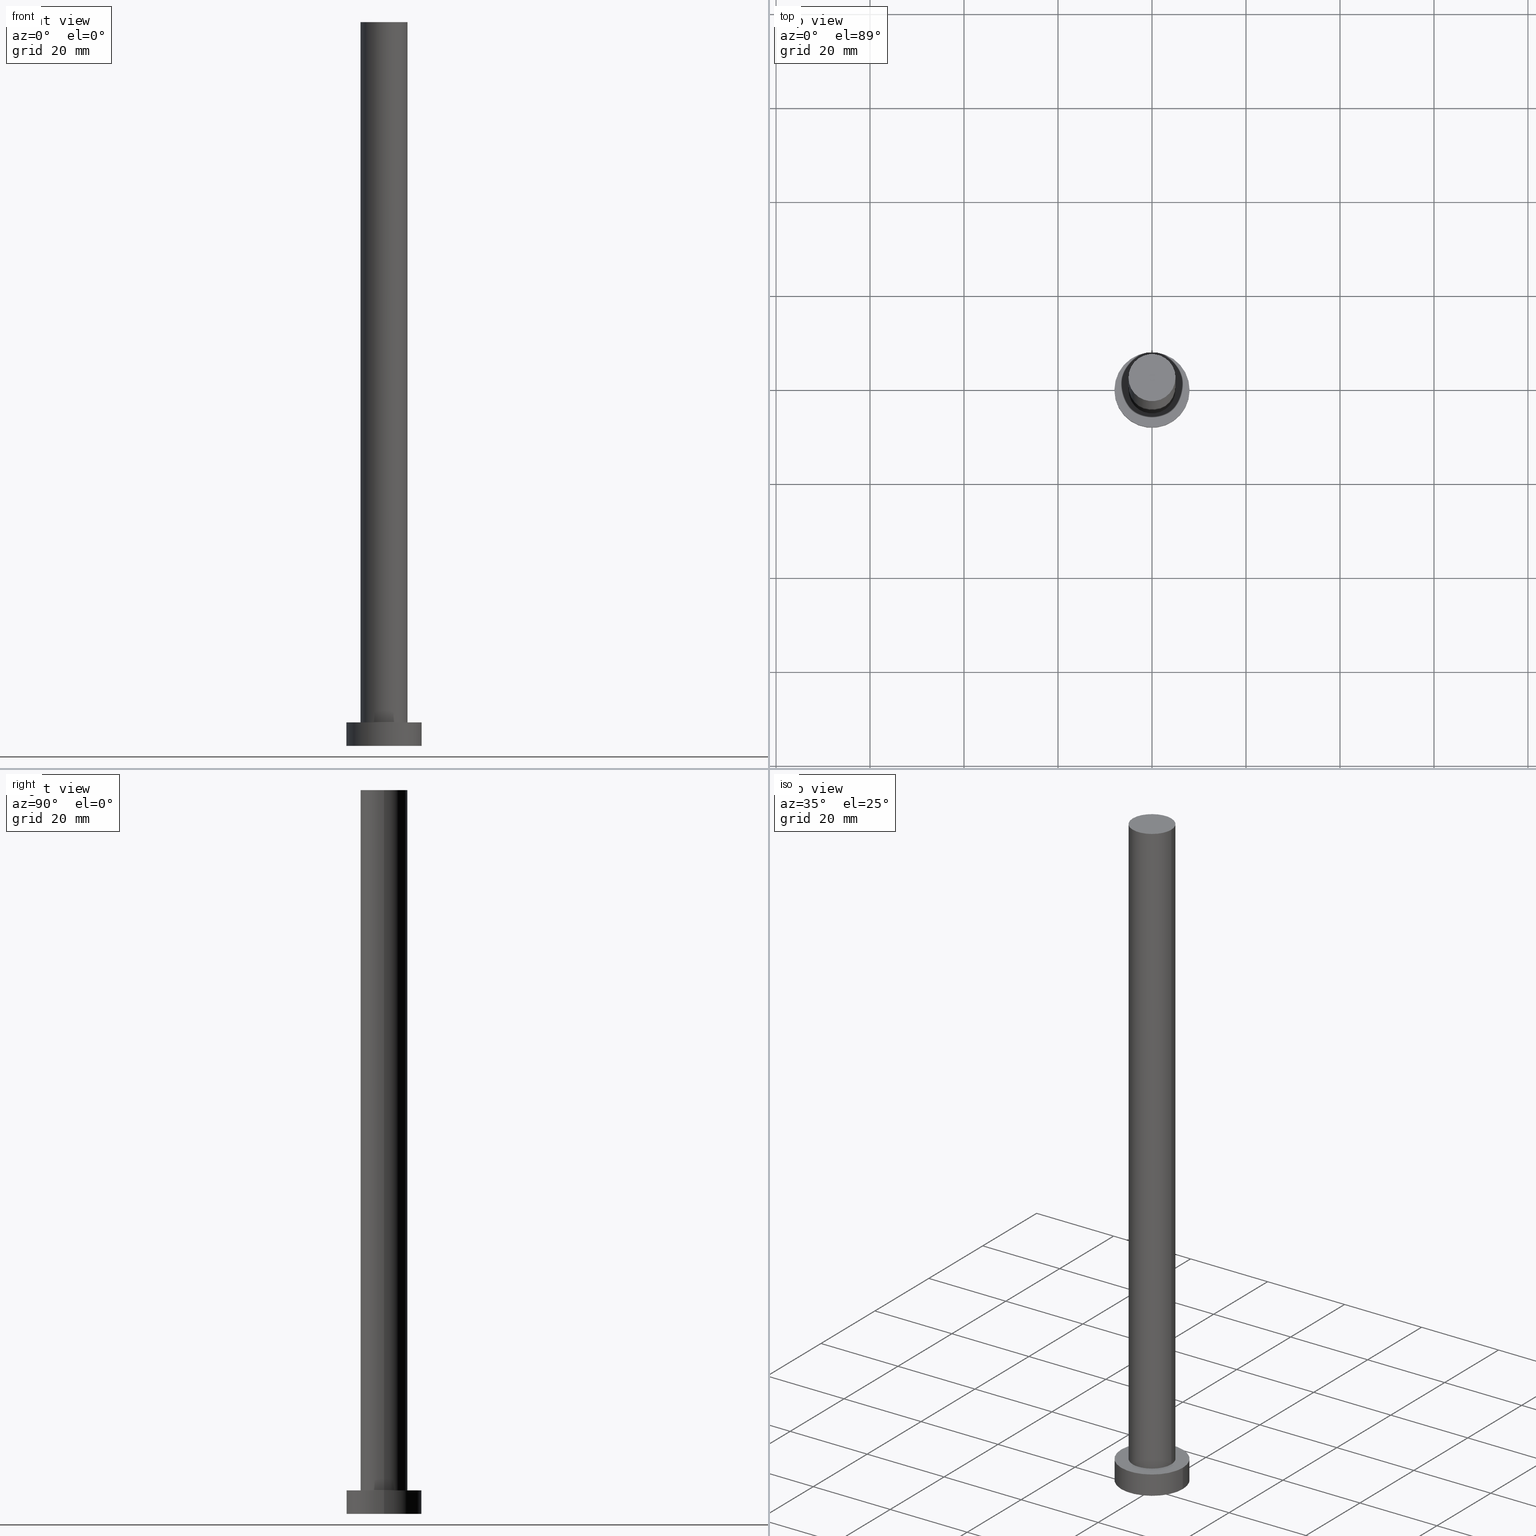
[diagram: canonical four-view strip — front | top / right | iso, engineering-drawing reading convention]
A machine part, canonical four-view strip (front | top / right | iso — engineering-drawing reading convention). The complete STEP part file that produces these views, byte-faithful:
ISO-10303-21;
HEADER;
FILE_DESCRIPTION (( 'STEP AP203' ),
    '1' );
FILE_NAME ('e9a7.STEP',
    '2023-03-28T12:15:48',
    ( '' ),
    ( '' ),
    'SwSTEP 2.0',
    'SolidWorks 2019',
    '' );
FILE_SCHEMA (( 'CONFIG_CONTROL_DESIGN' ));
ENDSEC;

DATA;
#1 = ORIENTED_EDGE ( 'NONE', *, *, #88, .F. ) ;
#2 = CARTESIAN_POINT ( 'NONE',  ( -8.000000000000000000, 0.000000000000000000, 5.000000000000000000 ) ) ;
#3 = DIRECTION ( 'NONE',  ( -1.000000000000000000, 0.000000000000000000, 0.000000000000000000 ) ) ;
#4 = AXIS2_PLACEMENT_3D ( 'NONE', #84, #87, #27 ) ;
#5 = CC_DESIGN_APPROVAL ( #80, ( #45 ) ) ;
#6 = CYLINDRICAL_SURFACE ( 'NONE', #239, 8.000000000000000000 ) ;
#7 = CARTESIAN_POINT ( 'NONE',  ( 0.000000000000000000, 0.000000000000000000, 154.0000000000000000 ) ) ;
#8 = CALENDAR_DATE ( 2023, 28, 3 ) ;
#9 = LOCAL_TIME ( 14, 15, 48.00000000000000000, #76 ) ;
#10 = PERSON_AND_ORGANIZATION ( #177, #245 ) ;
#11 = ORIENTED_EDGE ( 'NONE', *, *, #216, .T. ) ;
#12 = PERSON_AND_ORGANIZATION_ROLE ( 'creator' ) ;
#13 = APPROVAL_STATUS ( 'not_yet_approved' ) ;
#14 = PERSON_AND_ORGANIZATION_ROLE ( 'classification_officer' ) ;
#15 = EDGE_CURVE ( 'NONE', #75, #16, #115, .T. ) ;
#16 = VERTEX_POINT ( 'NONE', #155 ) ;
#17 = ORIENTED_EDGE ( 'NONE', *, *, #140, .T. ) ;
#18 = AXIS2_PLACEMENT_3D ( 'NONE', #47, #121, #3 ) ;
#19 = CARTESIAN_POINT ( 'NONE',  ( 0.000000000000000000, 0.000000000000000000, 154.0000000000000000 ) ) ;
#20 = ORIENTED_EDGE ( 'NONE', *, *, #124, .F. ) ;
#21 = PRODUCT_DEFINITION ( 'NEZN�M�', '', #159, #227 ) ;
#22 = DIRECTION ( 'NONE',  ( 0.000000000000000000, 0.000000000000000000, 1.000000000000000000 ) ) ;
#23 = LOCAL_TIME ( 14, 15, 48.00000000000000000, #128 ) ;
#24 = APPLICATION_CONTEXT ( 'configuration controlled 3d designs of mechanical parts and assemblies' ) ;
#25 = PLANE ( 'NONE',  #189 ) ;
#26 = CC_DESIGN_PERSON_AND_ORGANIZATION_ASSIGNMENT ( #33, #14, ( #45 ) ) ;
#27 = DIRECTION ( 'NONE',  ( 1.000000000000000000, 0.000000000000000000, 0.000000000000000000 ) ) ;
#28 = FACE_OUTER_BOUND ( 'NONE', #97, .T. ) ;
#29 =( NAMED_UNIT ( * ) PLANE_ANGLE_UNIT ( ) SI_UNIT ( $, .RADIAN. ) );
#30 = CARTESIAN_POINT ( 'NONE',  ( 5.000000000000000888, 6.123233995736767268E-16, 154.0000000000000000 ) ) ;
#31 = SECURITY_CLASSIFICATION_LEVEL ( 'unclassified' ) ;
#32 = MANIFOLD_SOLID_BREP ( 'P�idat vysunut�m3', #178 ) ;
#33 = PERSON_AND_ORGANIZATION ( #177, #245 ) ;
#34 = PERSON_AND_ORGANIZATION ( #177, #245 ) ;
#35 = DIRECTION ( 'NONE',  ( 0.000000000000000000, 0.000000000000000000, 1.000000000000000000 ) ) ;
#36 = ADVANCED_FACE ( 'NONE', ( #236 ), #43, .T. ) ;
#37 = EDGE_LOOP ( 'NONE', ( #226, #161, #82, #215 ) ) ;
#38 = AXIS2_PLACEMENT_3D ( 'NONE', #212, #22, #114 ) ;
#39 = DIRECTION ( 'NONE',  ( 0.000000000000000000, 0.000000000000000000, 1.000000000000000000 ) ) ;
#40 = APPROVAL_PERSON_ORGANIZATION ( #162, #80, #163 ) ;
#41 = EDGE_LOOP ( 'NONE', ( #154, #237 ) ) ;
#42 = VERTEX_POINT ( 'NONE', #165 ) ;
#43 = CYLINDRICAL_SURFACE ( 'NONE', #56, 8.000000000000000000 ) ;
#44 = AXIS2_PLACEMENT_3D ( 'NONE', #123, #35, #51 ) ;
#45 = SECURITY_CLASSIFICATION ( '', '', #31 ) ;
#46 =( LENGTH_UNIT ( ) NAMED_UNIT ( * ) SI_UNIT ( .MILLI., .METRE. ) );
#47 = CARTESIAN_POINT ( 'NONE',  ( 0.000000000000000000, 0.000000000000000000, 154.0000000000000000 ) ) ;
#48 = CARTESIAN_POINT ( 'NONE',  ( -8.000000000000000000, 0.000000000000000000, 0.000000000000000000 ) ) ;
#49 = CIRCLE ( 'NONE', #225, 5.000000000000000888 ) ;
#50 = CIRCLE ( 'NONE', #4, 8.000000000000000000 ) ;
#51 = DIRECTION ( 'NONE',  ( 1.000000000000000000, 0.000000000000000000, 0.000000000000000000 ) ) ;
#52 = ORIENTED_EDGE ( 'NONE', *, *, #248, .F. ) ;
#53 = APPROVAL_ROLE ( '' ) ;
#54 = EDGE_CURVE ( 'NONE', #151, #42, #150, .T. ) ;
#55 = PERSON_AND_ORGANIZATION ( #177, #245 ) ;
#56 = AXIS2_PLACEMENT_3D ( 'NONE', #231, #132, #61 ) ;
#57 = ORIENTED_EDGE ( 'NONE', *, *, #54, .F. ) ;
#58 = PRODUCT_RELATED_PRODUCT_CATEGORY ( 'detail', '', ( #136 ) ) ;
#59 = CARTESIAN_POINT ( 'NONE',  ( 0.000000000000000000, 0.000000000000000000, 5.000000000000000000 ) ) ;
#60 = LOCAL_TIME ( 14, 15, 48.00000000000000000, #180 ) ;
#61 = DIRECTION ( 'NONE',  ( -1.000000000000000000, 0.000000000000000000, 0.000000000000000000 ) ) ;
#62 = ORIENTED_EDGE ( 'NONE', *, *, #216, .F. ) ;
#63 = CYLINDRICAL_SURFACE ( 'NONE', #18, 5.000000000000000888 ) ;
#64 = CARTESIAN_POINT ( 'NONE',  ( 0.000000000000000000, 0.000000000000000000, 154.0000000000000000 ) ) ;
#65 = FACE_OUTER_BOUND ( 'NONE', #72, .T. ) ;
#66 = EDGE_CURVE ( 'NONE', #145, #255, #144, .T. ) ;
#67 = APPLICATION_PROTOCOL_DEFINITION ( 'international standard', 'config_control_design', 1994, #24 ) ;
#68 = VECTOR ( 'NONE', #79, 1000.000000000000000 ) ;
#69 = DIRECTION ( 'NONE',  ( 0.000000000000000000, 0.000000000000000000, 1.000000000000000000 ) ) ;
#70 = CC_DESIGN_PERSON_AND_ORGANIZATION_ASSIGNMENT ( #10, #89, ( #21 ) ) ;
#71 = CALENDAR_DATE ( 2023, 28, 3 ) ;
#72 = EDGE_LOOP ( 'NONE', ( #17, #96 ) ) ;
#73 = CIRCLE ( 'NONE', #103, 5.000000000000000888 ) ;
#74 = DATE_AND_TIME ( #8, #230 ) ;
#75 = VERTEX_POINT ( 'NONE', #94 ) ;
#76 = COORDINATED_UNIVERSAL_TIME_OFFSET ( 1, 0, .AHEAD. ) ;
#77 = DATE_TIME_ROLE ( 'classification_date' ) ;
#78 = DIRECTION ( 'NONE',  ( 1.000000000000000000, 0.000000000000000000, 0.000000000000000000 ) ) ;
#79 = DIRECTION ( 'NONE',  ( -0.000000000000000000, -0.000000000000000000, -1.000000000000000000 ) ) ;
#80 = APPROVAL ( #13, 'NEUR�EN�' ) ;
#81 = DIRECTION ( 'NONE',  ( 0.000000000000000000, 0.000000000000000000, 1.000000000000000000 ) ) ;
#82 = ORIENTED_EDGE ( 'NONE', *, *, #248, .T. ) ;
#83 = VERTEX_POINT ( 'NONE', #217 ) ;
#84 = CARTESIAN_POINT ( 'NONE',  ( 0.000000000000000000, 0.000000000000000000, 0.000000000000000000 ) ) ;
#85 = DIRECTION ( 'NONE',  ( 1.000000000000000000, 0.000000000000000000, 0.000000000000000000 ) ) ;
#86 = VECTOR ( 'NONE', #139, 1000.000000000000000 ) ;
#87 = DIRECTION ( 'NONE',  ( 0.000000000000000000, 0.000000000000000000, 1.000000000000000000 ) ) ;
#88 = EDGE_CURVE ( 'NONE', #16, #42, #143, .T. ) ;
#89 = PERSON_AND_ORGANIZATION_ROLE ( 'creator' ) ;
#90 = ORIENTED_EDGE ( 'NONE', *, *, #66, .F. ) ;
#91 = DATE_AND_TIME ( #148, #235 ) ;
#92 = PERSON_AND_ORGANIZATION_ROLE ( 'design_supplier' ) ;
#93 = PERSON_AND_ORGANIZATION ( #177, #245 ) ;
#94 = CARTESIAN_POINT ( 'NONE',  ( -5.000000000000000888, 0.000000000000000000, 154.0000000000000000 ) ) ;
#95 = AXIS2_PLACEMENT_3D ( 'NONE', #137, #186, #78 ) ;
#96 = ORIENTED_EDGE ( 'NONE', *, *, #99, .T. ) ;
#97 = EDGE_LOOP ( 'NONE', ( #252, #11, #246, #98 ) ) ;
#98 = ORIENTED_EDGE ( 'NONE', *, *, #204, .F. ) ;
#99 = EDGE_CURVE ( 'NONE', #127, #83, #194, .T. ) ;
#100 = CIRCLE ( 'NONE', #172, 8.000000000000000000 ) ;
#101 = CYLINDRICAL_SURFACE ( 'NONE', #210, 5.000000000000000888 ) ;
#102 = DIRECTION ( 'NONE',  ( 1.000000000000000000, 0.000000000000000000, 0.000000000000000000 ) ) ;
#103 = AXIS2_PLACEMENT_3D ( 'NONE', #7, #157, #141 ) ;
#104 = FACE_OUTER_BOUND ( 'NONE', #41, .T. ) ;
#105 = VECTOR ( 'NONE', #201, 1000.000000000000000 ) ;
#106 = LINE ( 'NONE', #2, #86 ) ;
#107 = DIRECTION ( 'NONE',  ( 1.000000000000000000, 0.000000000000000000, -0.000000000000000000 ) ) ;
#108 = CC_DESIGN_PERSON_AND_ORGANIZATION_ASSIGNMENT ( #93, #12, ( #159 ) ) ;
#109 = UNCERTAINTY_MEASURE_WITH_UNIT (LENGTH_MEASURE( 1.000000000000000082E-05 ), #46, 'distance_accuracy_value', 'NONE');
#110 = MECHANICAL_CONTEXT ( 'NONE', #24, 'mechanical' ) ;
#111 = PERSON_AND_ORGANIZATION ( #177, #245 ) ;
#112 = DATE_AND_TIME ( #179, #23 ) ;
#113 = ORIENTED_EDGE ( 'NONE', *, *, #140, .F. ) ;
#114 = DIRECTION ( 'NONE',  ( 1.000000000000000000, 0.000000000000000000, 0.000000000000000000 ) ) ;
#115 = LINE ( 'NONE', #167, #205 ) ;
#116 = DIRECTION ( 'NONE',  ( 1.000000000000000000, 0.000000000000000000, 0.000000000000000000 ) ) ;
#117 = ADVANCED_FACE ( 'NONE', ( #191 ), #101, .T. ) ;
#118 = CARTESIAN_POINT ( 'NONE',  ( 0.000000000000000000, 0.000000000000000000, 5.000000000000000000 ) ) ;
#119 = CC_DESIGN_APPROVAL ( #193, ( #159 ) ) ;
#120 = APPLICATION_CONTEXT ( 'configuration controlled 3d designs of mechanical parts and assemblies' ) ;
#121 = DIRECTION ( 'NONE',  ( -0.000000000000000000, -0.000000000000000000, -1.000000000000000000 ) ) ;
#122 = DIRECTION ( 'NONE',  ( -0.000000000000000000, -0.000000000000000000, -1.000000000000000000 ) ) ;
#123 = CARTESIAN_POINT ( 'NONE',  ( 0.000000000000000000, 0.000000000000000000, 0.000000000000000000 ) ) ;
#124 = EDGE_CURVE ( 'NONE', #75, #151, #242, .T. ) ;
#125 = PERSON_AND_ORGANIZATION ( #177, #245 ) ;
#126 = APPROVAL_DATE_TIME ( #112, #228 ) ;
#127 = VERTEX_POINT ( 'NONE', #234 ) ;
#128 = COORDINATED_UNIVERSAL_TIME_OFFSET ( 1, 0, .AHEAD. ) ;
#129 = ORIENTED_EDGE ( 'NONE', *, *, #88, .T. ) ;
#130 = AXIS2_PLACEMENT_3D ( 'NONE', #220, #238, #175 ) ;
#131 = EDGE_LOOP ( 'NONE', ( #57, #20, #187, #129 ) ) ;
#132 = DIRECTION ( 'NONE',  ( -0.000000000000000000, -0.000000000000000000, -1.000000000000000000 ) ) ;
#133 = APPROVAL_PERSON_ORGANIZATION ( #55, #228, #53 ) ;
#134 = DIRECTION ( 'NONE',  ( 0.000000000000000000, 0.000000000000000000, 1.000000000000000000 ) ) ;
#135 = CARTESIAN_POINT ( 'NONE',  ( 5.000000000000000888, 6.123233995736767268E-16, 154.0000000000000000 ) ) ;
#136 = PRODUCT ( 'e9a7', 'e9a7', '', ( #110 ) ) ;
#137 = CARTESIAN_POINT ( 'NONE',  ( 0.000000000000000000, 0.000000000000000000, 0.000000000000000000 ) ) ;
#138 = CARTESIAN_POINT ( 'NONE',  ( 0.000000000000000000, 0.000000000000000000, 5.000000000000000000 ) ) ;
#139 = DIRECTION ( 'NONE',  ( -0.000000000000000000, -0.000000000000000000, -1.000000000000000000 ) ) ;
#140 = EDGE_CURVE ( 'NONE', #83, #127, #100, .T. ) ;
#141 = DIRECTION ( 'NONE',  ( 1.000000000000000000, 0.000000000000000000, 0.000000000000000000 ) ) ;
#142 = APPROVAL_DATE_TIME ( #74, #193 ) ;
#143 = CIRCLE ( 'NONE', #188, 5.000000000000000888 ) ;
#144 = CIRCLE ( 'NONE', #95, 8.000000000000000000 ) ;
#145 = VERTEX_POINT ( 'NONE', #48 ) ;
#146 = EDGE_CURVE ( 'NONE', #151, #75, #73, .T. ) ;
#147 = SHAPE_DEFINITION_REPRESENTATION ( #253, #173 ) ;
#148 = CALENDAR_DATE ( 2023, 28, 3 ) ;
#149 = APPLICATION_PROTOCOL_DEFINITION ( 'international standard', 'config_control_design', 1994, #120 ) ;
#150 = LINE ( 'NONE', #135, #68 ) ;
#151 = VERTEX_POINT ( 'NONE', #30 ) ;
#152 = DIRECTION ( 'NONE',  ( 1.000000000000000000, 0.000000000000000000, 0.000000000000000000 ) ) ;
#153 = AXIS2_PLACEMENT_3D ( 'NONE', #197, #203, #107 ) ;
#154 = ORIENTED_EDGE ( 'NONE', *, *, #124, .T. ) ;
#155 = CARTESIAN_POINT ( 'NONE',  ( -5.000000000000000888, 0.000000000000000000, 5.000000000000000000 ) ) ;
#156 = CARTESIAN_POINT ( 'NONE',  ( 8.000000000000000000, 9.797174393178825657E-16, 0.000000000000000000 ) ) ;
#157 = DIRECTION ( 'NONE',  ( 0.000000000000000000, 0.000000000000000000, 1.000000000000000000 ) ) ;
#158 = FACE_OUTER_BOUND ( 'NONE', #37, .T. ) ;
#159 = PRODUCT_DEFINITION_FORMATION_WITH_SPECIFIED_SOURCE ( 'LIBOVOLN�', '', #136, .NOT_KNOWN. ) ;
#160 = DATE_AND_TIME ( #71, #60 ) ;
#161 = ORIENTED_EDGE ( 'NONE', *, *, #54, .T. ) ;
#162 = PERSON_AND_ORGANIZATION ( #177, #245 ) ;
#163 = APPROVAL_ROLE ( '' ) ;
#164 = ORIENTED_EDGE ( 'NONE', *, *, #204, .T. ) ;
#165 = CARTESIAN_POINT ( 'NONE',  ( 5.000000000000000888, 6.123233995736767268E-16, 5.000000000000000000 ) ) ;
#166 = DIRECTION ( 'NONE',  ( -1.000000000000000000, 0.000000000000000000, 0.000000000000000000 ) ) ;
#167 = CARTESIAN_POINT ( 'NONE',  ( -5.000000000000000888, 0.000000000000000000, 154.0000000000000000 ) ) ;
#168 = DIRECTION ( 'NONE',  ( -0.000000000000000000, -0.000000000000000000, -1.000000000000000000 ) ) ;
#169 = ADVANCED_FACE ( 'NONE', ( #158 ), #63, .T. ) ;
#170 = FACE_OUTER_BOUND ( 'NONE', #182, .T. ) ;
#171 = FACE_BOUND ( 'NONE', #233, .T. ) ;
#172 = AXIS2_PLACEMENT_3D ( 'NONE', #59, #134, #85 ) ;
#173 = ADVANCED_BREP_SHAPE_REPRESENTATION ( 'e9a7', ( #32, #44 ), #247 ) ;
#174 = PLANE ( 'NONE',  #153 ) ;
#175 = DIRECTION ( 'NONE',  ( 1.000000000000000000, 0.000000000000000000, -0.000000000000000000 ) ) ;
#176 = DIRECTION ( 'NONE',  ( 1.000000000000000000, 0.000000000000000000, -0.000000000000000000 ) ) ;
#177 = PERSON ( 'NEUR�EN�', 'NEUR�EN�', 'NEUR�EN�', ('NEUR�EN�'), ('NEUR�EN�'), ('NEUR�EN�') ) ;
#178 = CLOSED_SHELL ( 'NONE', ( #169, #190, #36, #184, #200, #117, #213 ) ) ;
#179 = CALENDAR_DATE ( 2023, 28, 3 ) ;
#180 = COORDINATED_UNIVERSAL_TIME_OFFSET ( 1, 0, .AHEAD. ) ;
#181 = DATE_TIME_ROLE ( 'creation_date' ) ;
#182 = EDGE_LOOP ( 'NONE', ( #90, #251 ) ) ;
#183 = COORDINATED_UNIVERSAL_TIME_OFFSET ( 1, 0, .AHEAD. ) ;
#184 = ADVANCED_FACE ( 'NONE', ( #171, #65 ), #198, .T. ) ;
#185 = CC_DESIGN_APPROVAL ( #228, ( #21 ) ) ;
#186 = DIRECTION ( 'NONE',  ( 0.000000000000000000, 0.000000000000000000, 1.000000000000000000 ) ) ;
#187 = ORIENTED_EDGE ( 'NONE', *, *, #15, .T. ) ;
#188 = AXIS2_PLACEMENT_3D ( 'NONE', #214, #39, #116 ) ;
#189 = AXIS2_PLACEMENT_3D ( 'NONE', #64, #69, #176 ) ;
#190 = ADVANCED_FACE ( 'NONE', ( #28 ), #6, .T. ) ;
#191 = FACE_OUTER_BOUND ( 'NONE', #131, .T. ) ;
#192 = DIRECTION ( 'NONE',  ( -0.000000000000000000, -0.000000000000000000, -1.000000000000000000 ) ) ;
#193 = APPROVAL ( #244, 'NEUR�EN�' ) ;
#194 = CIRCLE ( 'NONE', #38, 8.000000000000000000 ) ;
#195 = APPROVAL_PERSON_ORGANIZATION ( #111, #193, #208 ) ;
#196 = DIRECTION ( 'NONE',  ( 0.000000000000000000, 0.000000000000000000, 1.000000000000000000 ) ) ;
#197 = CARTESIAN_POINT ( 'NONE',  ( 0.000000000000000000, 0.000000000000000000, 0.000000000000000000 ) ) ;
#198 = PLANE ( 'NONE',  #130 ) ;
#199 = AXIS2_PLACEMENT_3D ( 'NONE', #254, #81, #152 ) ;
#200 = ADVANCED_FACE ( 'NONE', ( #170 ), #174, .F. ) ;
#201 = DIRECTION ( 'NONE',  ( -0.000000000000000000, -0.000000000000000000, -1.000000000000000000 ) ) ;
#202 = CC_DESIGN_SECURITY_CLASSIFICATION ( #45, ( #159 ) ) ;
#203 = DIRECTION ( 'NONE',  ( 0.000000000000000000, 0.000000000000000000, 1.000000000000000000 ) ) ;
#204 = EDGE_CURVE ( 'NONE', #83, #145, #106, .T. ) ;
#205 = VECTOR ( 'NONE', #192, 1000.000000000000000 ) ;
#206 = CALENDAR_DATE ( 2023, 28, 3 ) ;
#207 = COORDINATED_UNIVERSAL_TIME_OFFSET ( 1, 0, .AHEAD. ) ;
#208 = APPROVAL_ROLE ( '' ) ;
#209 = APPROVAL_STATUS ( 'not_yet_approved' ) ;
#210 = AXIS2_PLACEMENT_3D ( 'NONE', #19, #168, #166 ) ;
#211 = EDGE_CURVE ( 'NONE', #255, #145, #50, .T. ) ;
#212 = CARTESIAN_POINT ( 'NONE',  ( 0.000000000000000000, 0.000000000000000000, 5.000000000000000000 ) ) ;
#213 = ADVANCED_FACE ( 'NONE', ( #104 ), #25, .T. ) ;
#214 = CARTESIAN_POINT ( 'NONE',  ( 0.000000000000000000, 0.000000000000000000, 5.000000000000000000 ) ) ;
#215 = ORIENTED_EDGE ( 'NONE', *, *, #15, .F. ) ;
#216 = EDGE_CURVE ( 'NONE', #127, #255, #221, .T. ) ;
#217 = CARTESIAN_POINT ( 'NONE',  ( -8.000000000000000000, 0.000000000000000000, 5.000000000000000000 ) ) ;
#218 = EDGE_LOOP ( 'NONE', ( #62, #113, #164, #224 ) ) ;
#219 = CC_DESIGN_DATE_AND_TIME_ASSIGNMENT ( #160, #181, ( #21 ) ) ;
#220 = CARTESIAN_POINT ( 'NONE',  ( 0.000000000000000000, 0.000000000000000000, 5.000000000000000000 ) ) ;
#221 = LINE ( 'NONE', #241, #105 ) ;
#222 = CC_DESIGN_PERSON_AND_ORGANIZATION_ASSIGNMENT ( #34, #92, ( #159 ) ) ;
#223 = PERSON_AND_ORGANIZATION_ROLE ( 'design_owner' ) ;
#224 = ORIENTED_EDGE ( 'NONE', *, *, #66, .T. ) ;
#225 = AXIS2_PLACEMENT_3D ( 'NONE', #118, #196, #102 ) ;
#226 = ORIENTED_EDGE ( 'NONE', *, *, #146, .F. ) ;
#227 = DESIGN_CONTEXT ( 'detailed design', #120, 'design' ) ;
#228 = APPROVAL ( #209, 'NEUR�EN�' ) ;
#229 = APPROVAL_DATE_TIME ( #249, #80 ) ;
#230 = LOCAL_TIME ( 14, 15, 48.00000000000000000, #207 ) ;
#231 = CARTESIAN_POINT ( 'NONE',  ( 0.000000000000000000, 0.000000000000000000, 5.000000000000000000 ) ) ;
#232 = CC_DESIGN_DATE_AND_TIME_ASSIGNMENT ( #91, #77, ( #45 ) ) ;
#233 = EDGE_LOOP ( 'NONE', ( #1, #52 ) ) ;
#234 = CARTESIAN_POINT ( 'NONE',  ( 8.000000000000000000, 9.797174393178825657E-16, 5.000000000000000000 ) ) ;
#235 = LOCAL_TIME ( 14, 15, 48.00000000000000000, #183 ) ;
#236 = FACE_OUTER_BOUND ( 'NONE', #218, .T. ) ;
#237 = ORIENTED_EDGE ( 'NONE', *, *, #146, .T. ) ;
#238 = DIRECTION ( 'NONE',  ( 0.000000000000000000, 0.000000000000000000, 1.000000000000000000 ) ) ;
#239 = AXIS2_PLACEMENT_3D ( 'NONE', #138, #122, #243 ) ;
#240 =( NAMED_UNIT ( * ) SI_UNIT ( $, .STERADIAN. ) SOLID_ANGLE_UNIT ( ) );
#241 = CARTESIAN_POINT ( 'NONE',  ( 8.000000000000000000, 9.797174393178825657E-16, 5.000000000000000000 ) ) ;
#242 = CIRCLE ( 'NONE', #199, 5.000000000000000888 ) ;
#243 = DIRECTION ( 'NONE',  ( -1.000000000000000000, 0.000000000000000000, 0.000000000000000000 ) ) ;
#244 = APPROVAL_STATUS ( 'not_yet_approved' ) ;
#245 = ORGANIZATION ( 'NEUR�EN�', 'NEUR�EN�', '' ) ;
#246 = ORIENTED_EDGE ( 'NONE', *, *, #211, .T. ) ;
#247 =( GEOMETRIC_REPRESENTATION_CONTEXT ( 3 ) GLOBAL_UNCERTAINTY_ASSIGNED_CONTEXT ( ( #109 ) ) GLOBAL_UNIT_ASSIGNED_CONTEXT ( ( #46, #29, #240 ) ) REPRESENTATION_CONTEXT ( 'NONE', 'WORKASPACE' ) );
#248 = EDGE_CURVE ( 'NONE', #42, #16, #49, .T. ) ;
#249 = DATE_AND_TIME ( #206, #9 ) ;
#250 = CC_DESIGN_PERSON_AND_ORGANIZATION_ASSIGNMENT ( #125, #223, ( #136 ) ) ;
#251 = ORIENTED_EDGE ( 'NONE', *, *, #211, .F. ) ;
#252 = ORIENTED_EDGE ( 'NONE', *, *, #99, .F. ) ;
#253 = PRODUCT_DEFINITION_SHAPE ( 'NONE', 'NONE',  #21 ) ;
#254 = CARTESIAN_POINT ( 'NONE',  ( 0.000000000000000000, 0.000000000000000000, 154.0000000000000000 ) ) ;
#255 = VERTEX_POINT ( 'NONE', #156 ) ;
ENDSEC;
END-ISO-10303-21;
